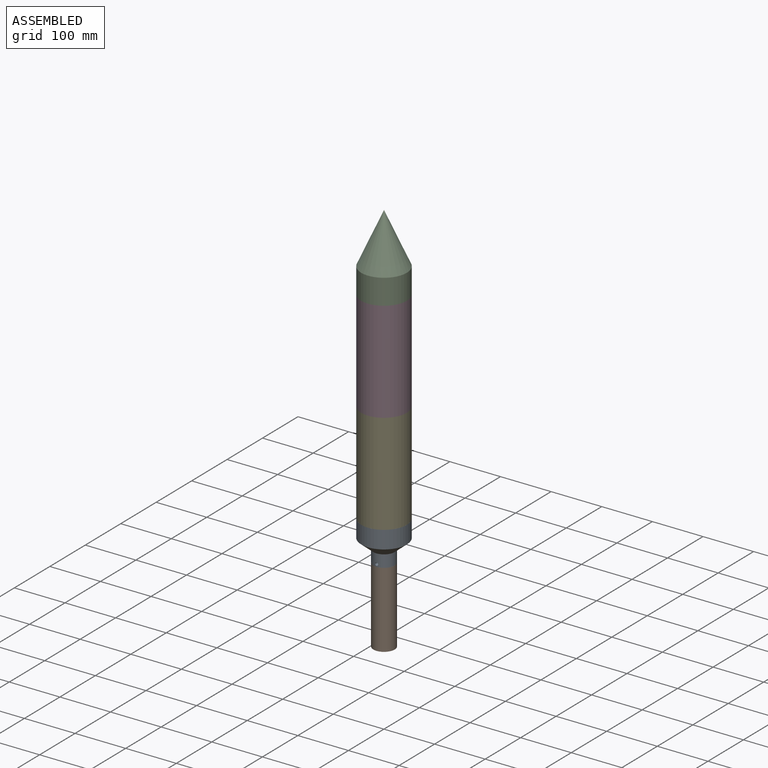
[diagram: assembled view]
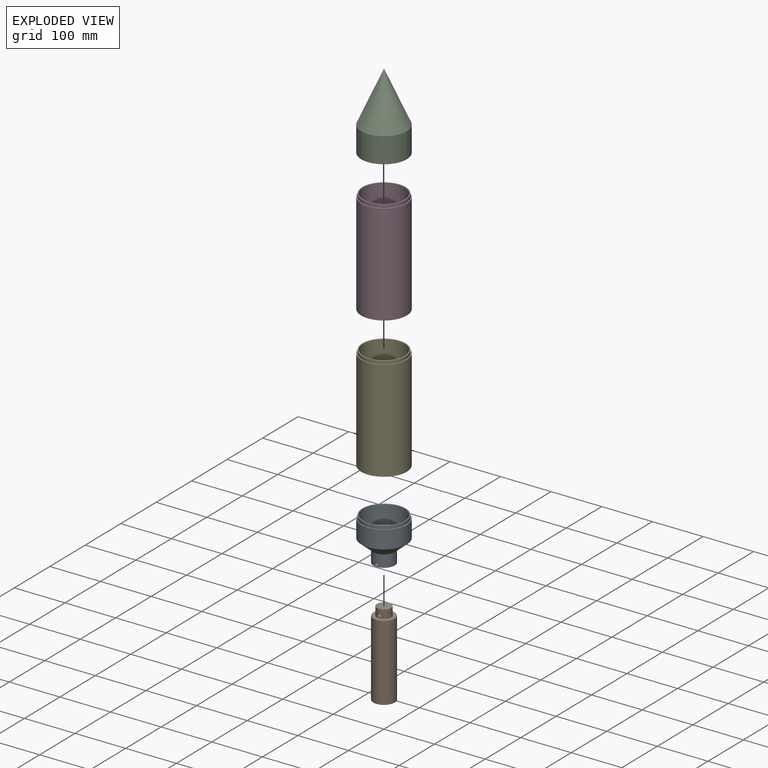
[diagram: exploded view]
GUIDED TOUR — MATED ASSEMBLY (Onshape document 2a1c6613f044ee13382d13de, AutoMate assembly 2a1c6613f044ee13382d13de_4c4db6758d8ee85be0477526_6b141144d60605d0e8371043_default)

This assembly has 5 components, labeled P0..P4 below (a component is one placed occurrence of a part; the same part can appear more than once), held together by 8 mates. A mate is a constraint between two components; its type names the relative motion it leaves free:
  CYLINDRICAL — leaves both rotation about and translation along the listed axis free,
  PLANAR — leaves sliding in the plane through the listed point (normal = the listed direction) and rotation about that normal free.
Axis/direction vectors are unit vectors and 'through' points are millimeter coordinates, both in the assembly's world frame.

MATES
  1. PLANAR "Planar 3": P4 <-> P0, direction (0.000, 0.000, -1.000) through (-50.39, -227.76, -341.91) mm
  2. PLANAR "Planar 1": P2 <-> P3, direction (0.000, 0.000, -1.000) through (-50.39, -227.76, 58.09) mm
  3. CYLINDRICAL "Cylindrical 3": P0 <-> P4, axis (0.000, 0.000, -1.000) through (-50.39, -227.76, -338.91) mm
  4. CYLINDRICAL "Cylindrical 4": P1 <-> P0, axis (0.000, 0.000, 1.000) through (-50.39, -227.76, -412.41) mm
  5. CYLINDRICAL "Cylindrical 2": P4 <-> P3, axis (0.000, 0.000, 1.000) through (-50.39, -227.76, -138.91) mm
  6. PLANAR "Planar 2": P4 <-> P3, direction (0.000, 0.000, 1.000) through (-50.39, -227.76, -141.91) mm
  7. PLANAR "Planar 4": P1 <-> P0, direction (0.000, 0.000, 1.000) through (-50.39, -227.76, -420.91) mm
  8. CYLINDRICAL "Cylindrical 1": P2 <-> P3, axis (0.000, 0.000, -1.000) through (-50.39, -227.76, 64.09) mm

ASSEMBLY ORDER
  1. P0 — the base component [order heuristic]
  2. P1 — core [order heuristic]
  3. P4 [order verified]
  4. P3 [order verified]
  5. P2 [order verified]
Order-tag legend:
  [order verified] — this step's position reverses a verified removal order: the component was checked to insert without passing through the ones already placed.
  [order heuristic] — the first 2 components form the assembly's core: parts whose collision-free extraction could not be verified, listed in mate-graph order.

Of the 5 components, 4 carry the full construction recipe — the FeatureScript program that regenerates the part's solid from scratch; the rest are supplied as boundary geometry only.
Each toured component is shown spotlighted twice — in the assembled view, then in the exploded view, where a leader line traces a displaced component back to its assembled socket (saturated green if recipe-attached, orange if geometry-only; every other component desaturated gray) — followed by its recipe or geometry summary and the mates that hold it.
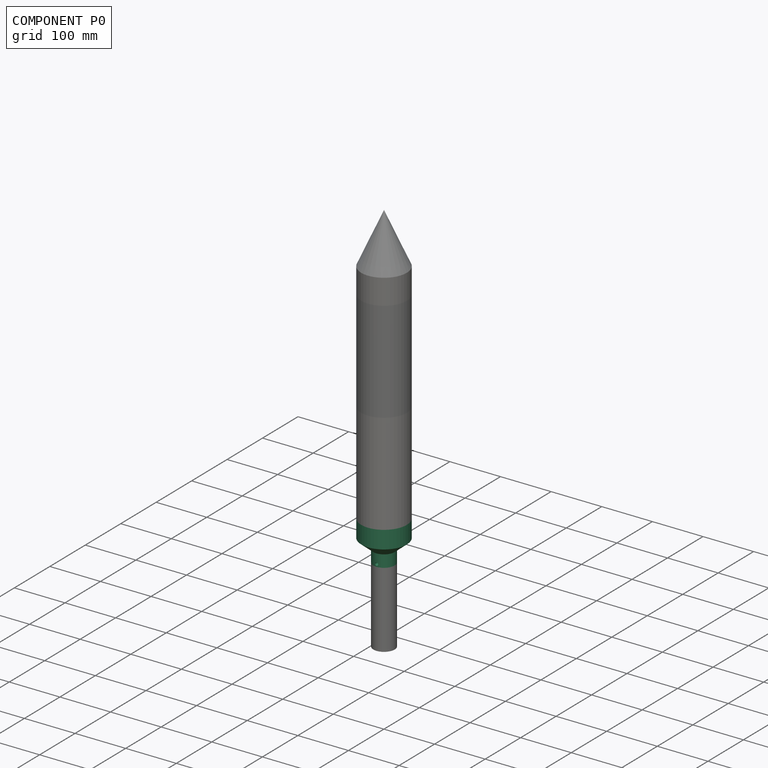
[diagram: component P0 — assembled]
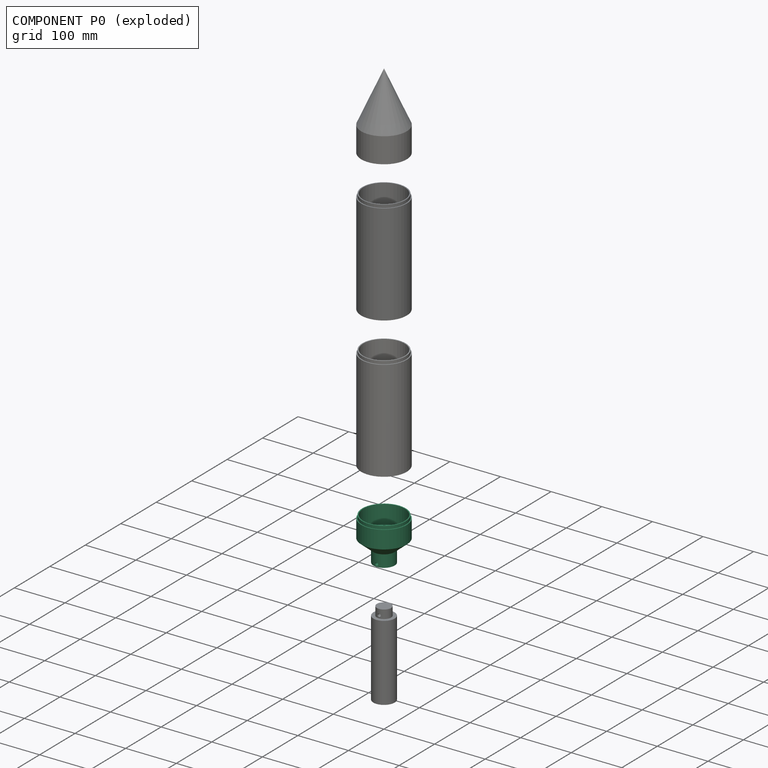
[diagram: component P0 — exploded]
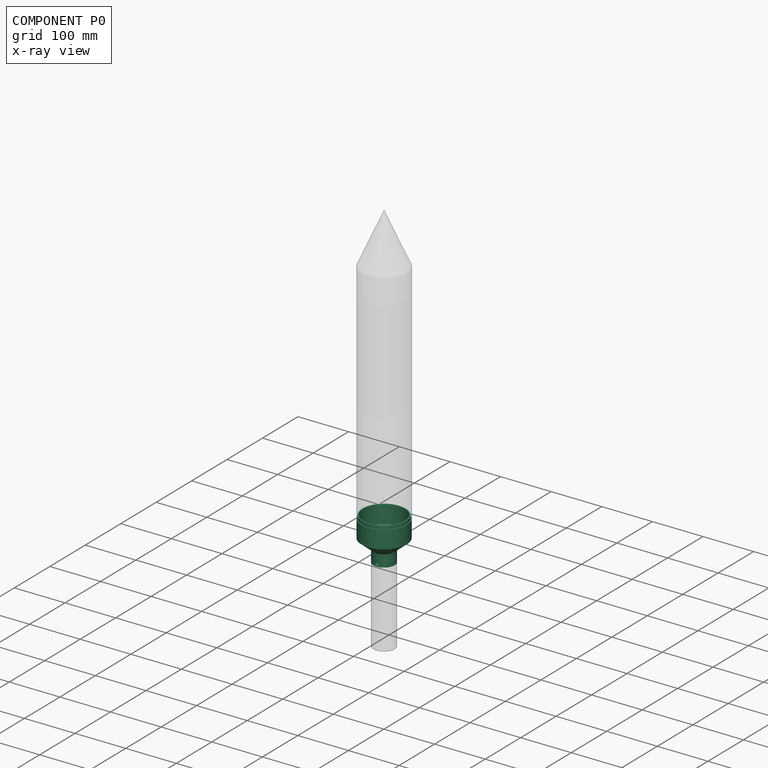
[diagram: component P0 — x-ray view]
COMPONENT P0 — recipe-attached (CADFS 00427040, mesh-verified: the recipe's output STEP matches this component's geometry to below the mesh-comparison resolution (tessellation chordal tolerance ~0.229 mm)).
Held by: PLANAR mate "Planar 3" to P4; CYLINDRICAL mate "Cylindrical 3" to P4; CYLINDRICAL mate "Cylindrical 4" to P1; PLANAR mate "Planar 4" to P1.
Construction recipe (FeatureScript — the CAD program that rebuilds this solid; sketch coordinates are in the units given by the * unit suffixes, e.g. mm):

FeatureScript 1511;
import(path : "onshape/std/geometry.fs", version : "1511.0");
import(path : "onshape/std/common.fs", version : "1511.0");
const mm = millimeter;
const VERTEX = EntityType.VERTEX;
const EDGE = EntityType.EDGE;
const FACE = EntityType.FACE;
const BODY = EntityType.BODY;
function v(x, y){return vector(x, y);}
function OD(order){return orderDisambiguation(order);}
function OSD(set){return originalSetDisambiguation(set);}
function TD(topology){return topologyDisambiguation(topology);}
function TDD(query){return trueDependencyDisambiguation(query);}
function sQuery(a, b, c) {return sketchEntityQuery(a, b, c);}

annotation { "Feature Type Name" : "Feature", "Feature Type Description" : "" }
export const myFeature = defineFeature(function(context is Context, id is Id, definition is map)
    precondition{}
    {
        {
            var Q0;
            Q0=qCreatedBy(makeId("Front.planeOp"),FACE);
            var sketch = newSketch(context, id + "F0", { "sketchPlane" : qUnion([Q0])});
            skLineSegment(sketch, "E0", {"start": v(0, -97.36) * mm, "end": v(0, 38.15) * mm, "construction": true});
            skLineSegment(sketch, "E1", {"start": v(0, -29.6) * mm, "end": v(21, -29.6) * mm, "construction": true});
            skLineSegment(sketch, "E2", {"start": v(21, -53.6) * mm, "end": v(14, -53.6) * mm});
            skLineSegment(sketch, "E3", {"start": v(14, -53.6) * mm, "end": v(14, -36.6) * mm});
            skLineSegment(sketch, "E4", {"start": v(14, -36.6) * mm, "end": v(0, -36.6) * mm});
            skLineSegment(sketch, "E5", {"start": v(21, -53.6) * mm, "end": v(21, -29.6) * mm});
            skLineSegment(sketch, "E6", {"start": v(0, -9.6) * mm, "end": v(45, -9.6) * mm, "construction": true});
            skLineSegment(sketch, "E7", {"start": v(21, -29.6) * mm, "end": v(45, -9.6) * mm});
            skLineSegment(sketch, "E8", {"start": v(0, -29.6) * mm, "end": v(0, -9.6) * mm, "construction": true});
            skLineSegment(sketch, "E9", {"start": v(0, -36.6) * mm, "end": v(0, -29.6) * mm});
            skLineSegment(sketch, "E10", {"start": v(0, -9.6) * mm, "end": v(0, -4.6) * mm});
            skLineSegment(sketch, "E11", {"start": v(0, -9.6) * mm, "end": v(0, -29.6) * mm});
            skLineSegment(sketch, "E12", {"start": v(45, -9.6) * mm, "end": v(45, -4.6) * mm});
            skLineSegment(sketch, "E13", {"start": v(0, -4.6) * mm, "end": v(41, -4.6) * mm});
            skLineSegment(sketch, "E14", {"start": v(45, -4.6) * mm, "end": v(45, 25.4) * mm});
            skLineSegment(sketch, "E15", {"start": v(45, 25.4) * mm, "end": v(43, 25.4) * mm});
            skLineSegment(sketch, "E16", {"start": v(43, 25.4) * mm, "end": v(43, 31.4) * mm});
            skLineSegment(sketch, "E17", {"start": v(41, -4.6) * mm, "end": v(41, 31.4) * mm});
            skLineSegment(sketch, "E18", {"start": v(41, 31.4) * mm, "end": v(43, 31.4) * mm});
            skSolve(sketch);
        }
        {
            var Q0;
            Q0=makeQuery(id+"F0.imprint","IMPRINT",FACE,{"disambiguationData":[TD([[makeQuery(id+"F0.imprint","IMPRINT",EDGE,{"derivedFrom":sQuery(id+"F0.wireOp",EDGE,"E2")}),-1.0]])]});
            var Q1;
            Q1=sQuery(id+"F0.wireOp",EDGE,"E0");
            revolve(context, id + "F1", {"entities" : qUnion([Q0]), "axis" : qUnion([Q1]), "revolveType" : RevolveType.FULL});
        }
        {
            var Q0;
            Q0=qCreatedBy(makeId("Front.planeOp"),FACE);
            var sketch = newSketch(context, id + "F2", { "sketchPlane" : qUnion([Q0])});
            skLineSegment(sketch, "E19.0", {"start": v(21, -53.6) * mm, "end": v(-21, -53.6) * mm, "construction": true});
            skLineSegment(sketch, "E20", {"start": v(21, -53.6) * mm, "end": v(21, -43.6) * mm, "construction": true});
            skLineSegment(sketch, "E21", {"start": v(21, -43.6) * mm, "end": v(-21, -43.6) * mm, "construction": true});
            skLineSegment(sketch, "E22", {"start": v(-21, -43.6) * mm, "end": v(-21, -53.6) * mm, "construction": true});
            skLineSegment(sketch, "E23", {"start": v(0, -53.6) * mm, "end": v(0, -43.6) * mm, "construction": true});
            skCircle(sketch, "E24", {"center": v(0, -48.6) * mm, "radius": 3 * mm});
            skSolve(sketch);
        }
        {
            var Q0;
            Q0=makeQuery(id+"F2.imprint","IMPRINT",FACE,{"disambiguationData":[TD([[makeQuery(id+"F2.imprint","IMPRINT",EDGE,{"derivedFrom":sQuery(id+"F2.wireOp",EDGE,"E24")}),1.0]])]});
            var Q1;
            Q1=sQuery(id+"F2.wireOp",EDGE,"E24");
            extrude(context, id + "F3", {"entities" : qUnion([Q0]), "operationType" : NewBodyOperationType.REMOVE, "surfaceEntities" : qUnion([Q1]), "endBound" : BoundingType.SYMMETRIC, "depth" : 50 * mm});
        }
    });
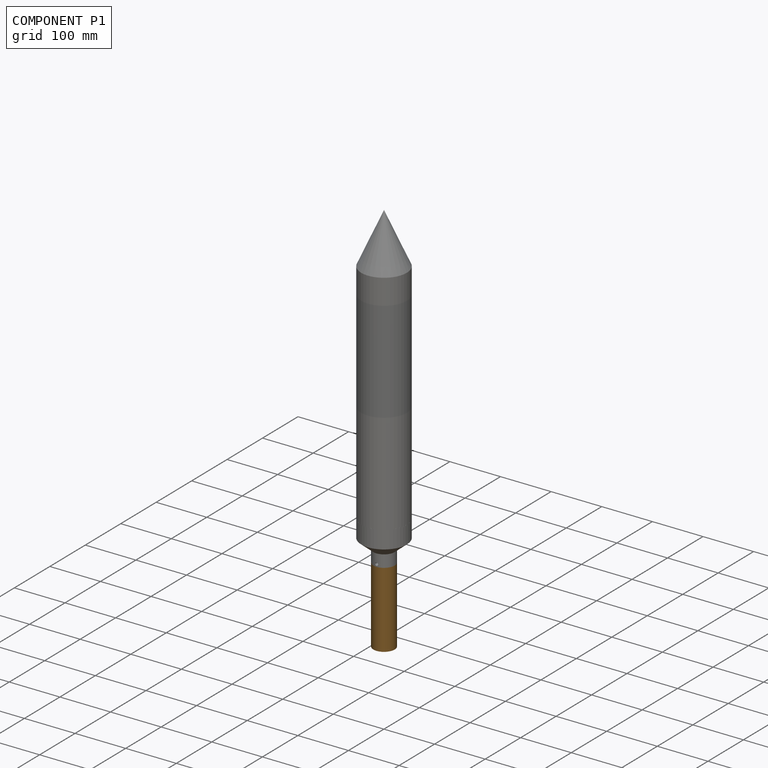
[diagram: component P1 — assembled]
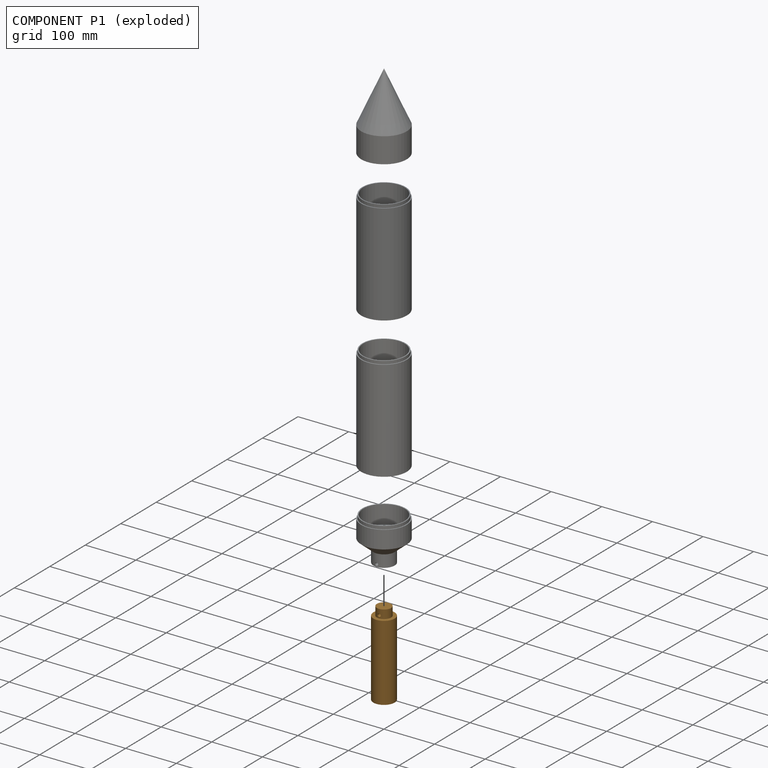
[diagram: component P1 — exploded]
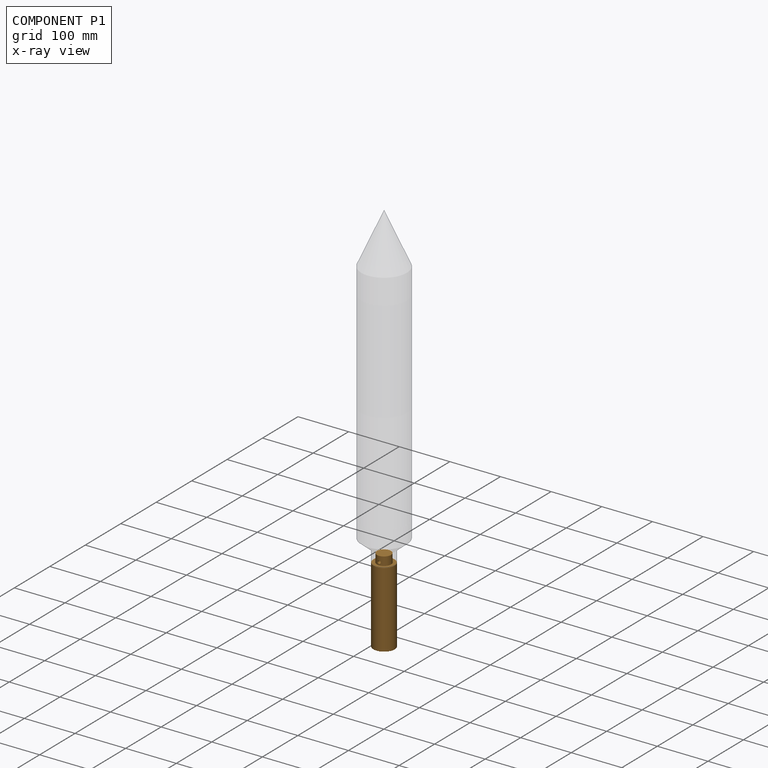
[diagram: component P1 — x-ray view]
COMPONENT P1 — geometry summary (no construction recipe available for this part):
  bounding box: 167.0 x 42.0 x 42.0 mm
  B-rep topology: 1 solid, 11 faces, 49 edges
  volume: 116642 mm^3 (40% of its bounding box)
  symmetry: 2-fold rotationally symmetric about the z axis; mirror-symmetric across its x mid-plane, y mid-plane
Held by: CYLINDRICAL mate "Cylindrical 4" to P0; PLANAR mate "Planar 4" to P0.
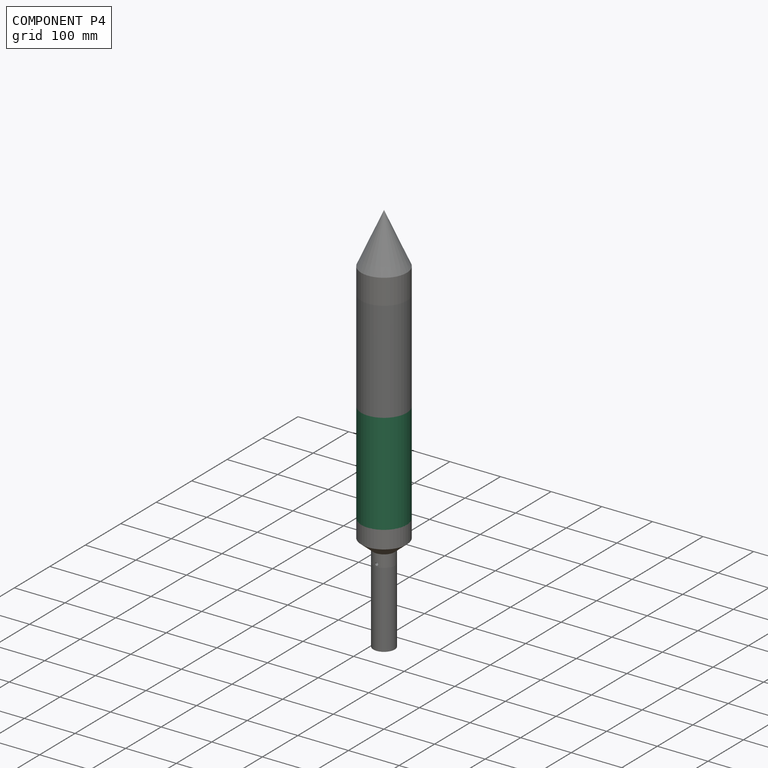
[diagram: component P4 — assembled]
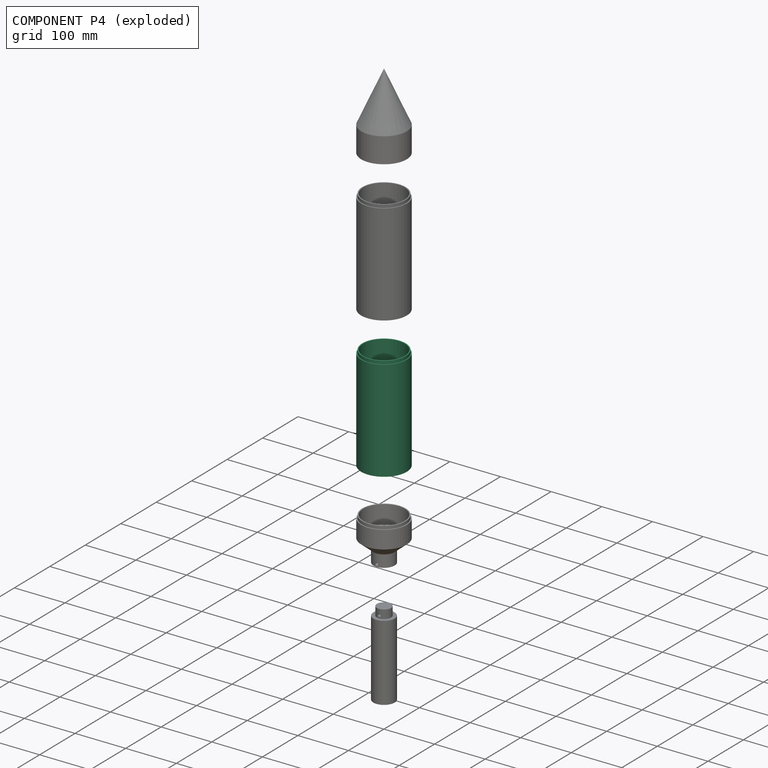
[diagram: component P4 — exploded]
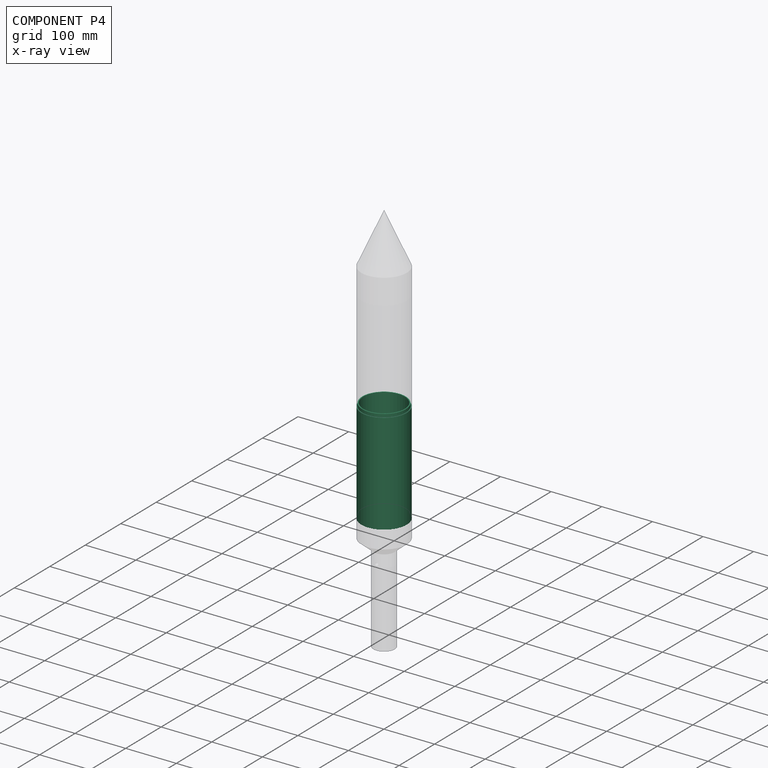
[diagram: component P4 — x-ray view]
COMPONENT P4 — same part as P3 (CADFS 00437142); its construction recipe is shown at P3.
Held by: PLANAR mate "Planar 3" to P0; CYLINDRICAL mate "Cylindrical 3" to P0; CYLINDRICAL mate "Cylindrical 2" to P3; PLANAR mate "Planar 2" to P3.
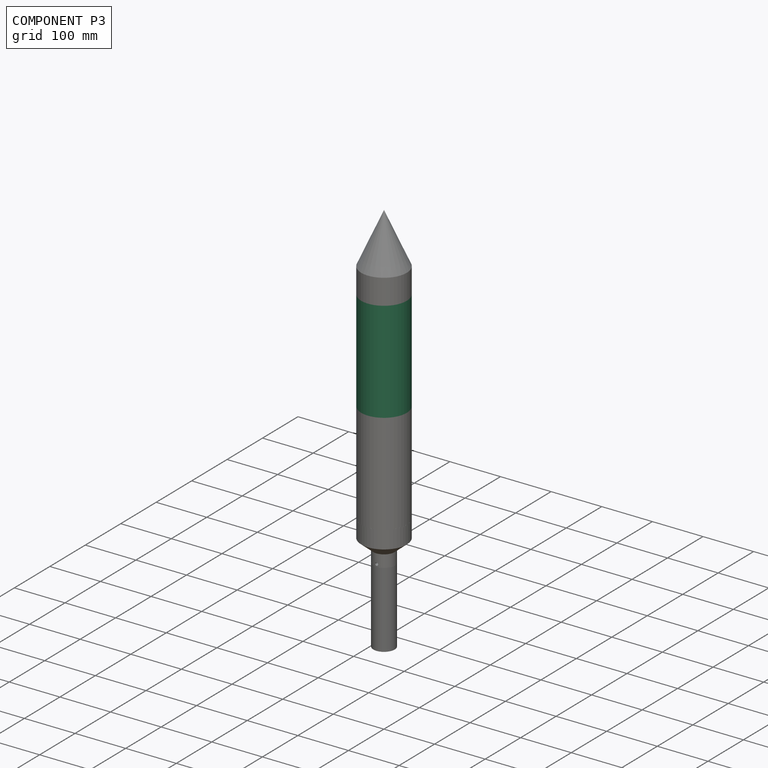
[diagram: component P3 — assembled]
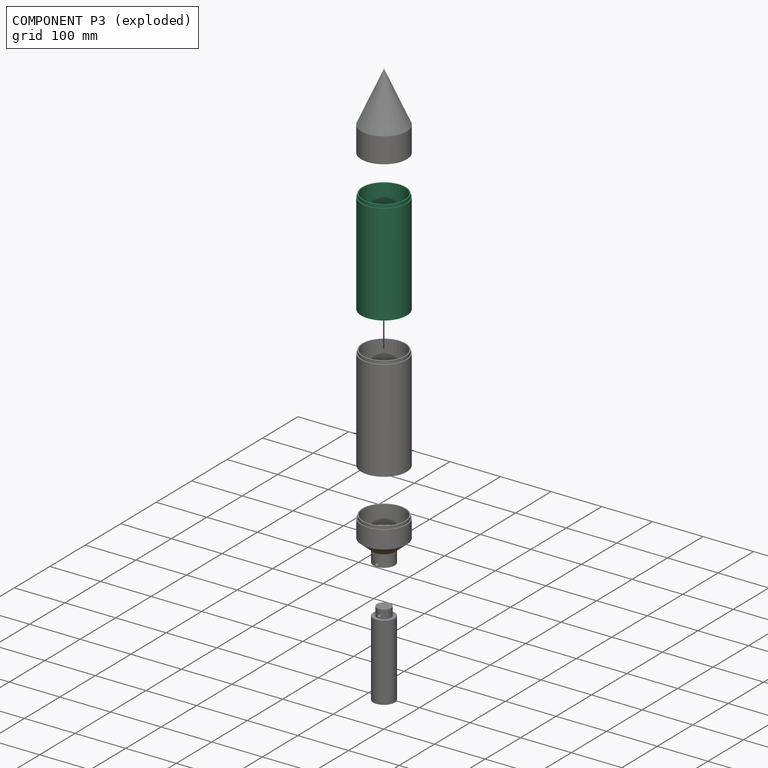
[diagram: component P3 — exploded]
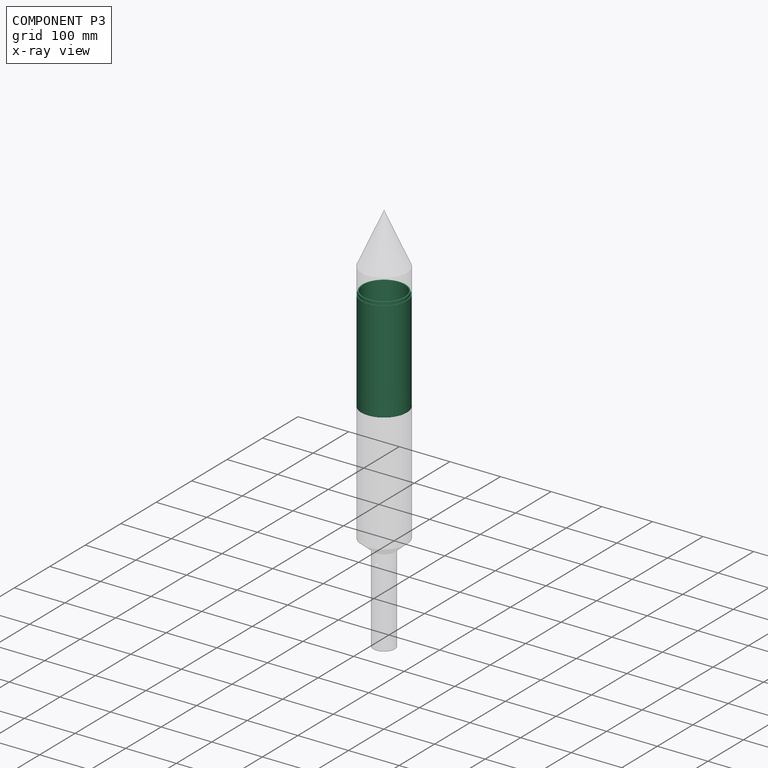
[diagram: component P3 — x-ray view]
COMPONENT P3 — recipe-attached (CADFS 00437142, mesh-verified: the recipe's output STEP matches this component's geometry to below the mesh-comparison resolution (tessellation chordal tolerance ~0.363 mm)).
Held by: PLANAR mate "Planar 1" to P2; CYLINDRICAL mate "Cylindrical 2" to P4; PLANAR mate "Planar 2" to P4; CYLINDRICAL mate "Cylindrical 1" to P2.
Construction recipe (FeatureScript — the CAD program that rebuilds this solid; sketch coordinates are in the units given by the * unit suffixes, e.g. mm):

FeatureScript 1511;
import(path : "onshape/std/geometry.fs", version : "1511.0");
import(path : "onshape/std/common.fs", version : "1511.0");
const mm = millimeter;
const VERTEX = EntityType.VERTEX;
const EDGE = EntityType.EDGE;
const FACE = EntityType.FACE;
const BODY = EntityType.BODY;
function v(x, y){return vector(x, y);}
function OD(order){return orderDisambiguation(order);}
function OSD(set){return originalSetDisambiguation(set);}
function TD(topology){return topologyDisambiguation(topology);}
function TDD(query){return trueDependencyDisambiguation(query);}
function sQuery(a, b, c) {return sketchEntityQuery(a, b, c);}

annotation { "Feature Type Name" : "Feature", "Feature Type Description" : "" }
export const myFeature = defineFeature(function(context is Context, id is Id, definition is map)
    precondition{}
    {
        {
            var Q0;
            Q0=qCreatedBy(makeId("Front.planeOp"),FACE);
            var sketch = newSketch(context, id + "F0", { "sketchPlane" : qUnion([Q0])});
            skLineSegment(sketch, "E0", {"start": v(0, 0) * mm, "end": v(41, 0) * mm, "construction": true});
            skLineSegment(sketch, "E1", {"start": v(41, 0) * mm, "end": v(41, -101.03) * mm});
            skLineSegment(sketch, "E2", {"start": v(41, -101.03) * mm, "end": v(43, -101.03) * mm});
            skLineSegment(sketch, "E3", {"start": v(43, -101.03) * mm, "end": v(43, -95.03) * mm});
            skLineSegment(sketch, "E4", {"start": v(43, -95.03) * mm, "end": v(45, -95.03) * mm});
            skLineSegment(sketch, "E5", {"start": v(45, -95.03) * mm, "end": v(45, 104.97) * mm});
            skLineSegment(sketch, "E6", {"start": v(45, 104.97) * mm, "end": v(43, 104.97) * mm});
            skLineSegment(sketch, "E7", {"start": v(43, 104.97) * mm, "end": v(43, 98.97) * mm});
            skLineSegment(sketch, "E8", {"start": v(43, 98.97) * mm, "end": v(41, 98.97) * mm});
            skLineSegment(sketch, "E9", {"start": v(41, 98.97) * mm, "end": v(41, 0) * mm});
            skLineSegment(sketch, "E10", {"start": v(0, -59.1) * mm, "end": v(0, 57.73) * mm, "construction": true});
            skSolve(sketch);
        }
        {
            var Q0;
            Q0=makeQuery(id+"F0.imprint","IMPRINT",FACE,{"disambiguationData":[TD([[makeQuery(id+"F0.imprint","IMPRINT",EDGE,{"derivedFrom":sQuery(id+"F0.wireOp",EDGE,"E1")}),1.0]])]});
            var Q1;
            Q1=sQuery(id+"F0.wireOp",EDGE,"E10");
            revolve(context, id + "F1", {"entities" : qUnion([Q0]), "axis" : qUnion([Q1]), "revolveType" : RevolveType.FULL});
        }
    });
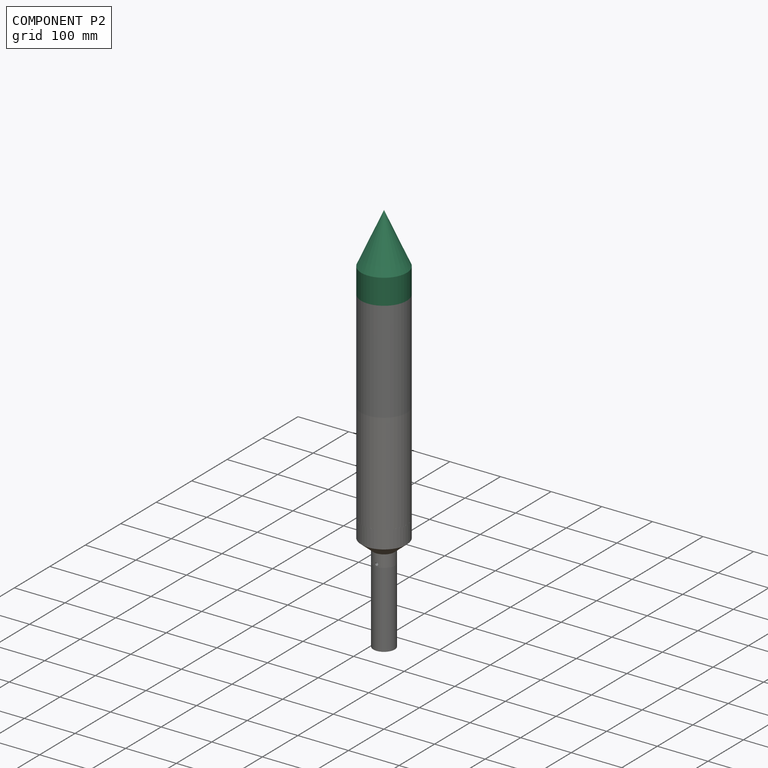
[diagram: component P2 — assembled]
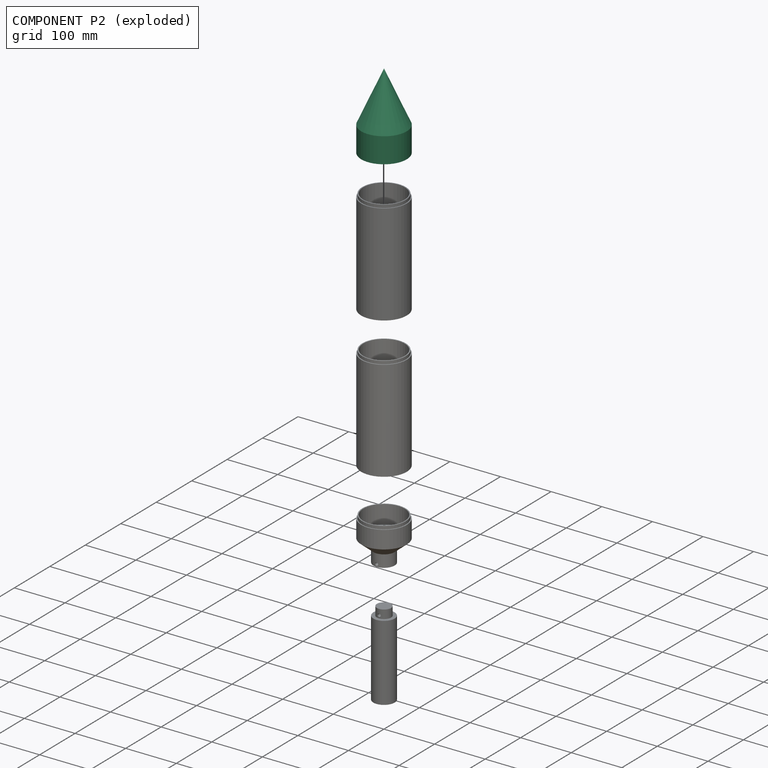
[diagram: component P2 — exploded]
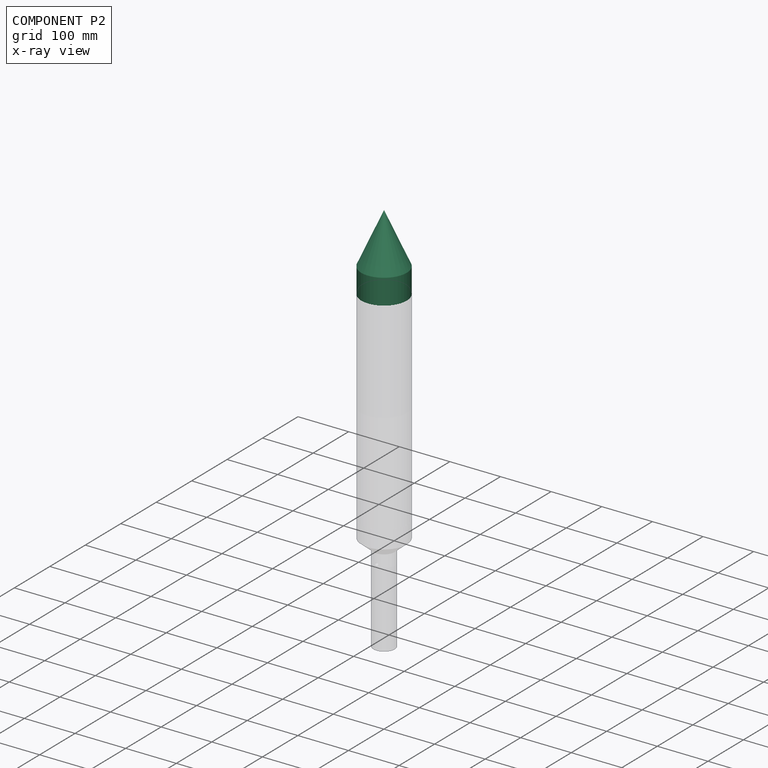
[diagram: component P2 — x-ray view]
COMPONENT P2 — recipe-attached (CADFS 00437150, mesh-verified: the recipe's output STEP matches this component's geometry to below the mesh-comparison resolution (tessellation chordal tolerance ~0.295 mm)).
Held by: PLANAR mate "Planar 1" to P3; CYLINDRICAL mate "Cylindrical 1" to P3.
Construction recipe (FeatureScript — the CAD program that rebuilds this solid; sketch coordinates are in the units given by the * unit suffixes, e.g. mm):

FeatureScript 1511;
import(path : "onshape/std/geometry.fs", version : "1511.0");
import(path : "onshape/std/common.fs", version : "1511.0");
const mm = millimeter;
const VERTEX = EntityType.VERTEX;
const EDGE = EntityType.EDGE;
const FACE = EntityType.FACE;
const BODY = EntityType.BODY;
function v(x, y){return vector(x, y);}
function OD(order){return orderDisambiguation(order);}
function OSD(set){return originalSetDisambiguation(set);}
function TD(topology){return topologyDisambiguation(topology);}
function TDD(query){return trueDependencyDisambiguation(query);}
function sQuery(a, b, c) {return sketchEntityQuery(a, b, c);}

annotation { "Feature Type Name" : "Feature", "Feature Type Description" : "" }
export const myFeature = defineFeature(function(context is Context, id is Id, definition is map)
    precondition{}
    {
        {
            var Q0;
            Q0=qCreatedBy(makeId("Front.planeOp"),FACE);
            var sketch = newSketch(context, id + "F0", { "sketchPlane" : qUnion([Q0])});
            skLineSegment(sketch, "E0", {"start": v(0, 0) * mm, "end": v(41, 0) * mm, "construction": true});
            skLineSegment(sketch, "E1", {"start": v(41, -26.48) * mm, "end": v(43, -26.48) * mm});
            skLineSegment(sketch, "E2", {"start": v(43, -26.48) * mm, "end": v(43, -32.48) * mm});
            skLineSegment(sketch, "E3", {"start": v(43, -32.48) * mm, "end": v(45, -32.48) * mm});
            skLineSegment(sketch, "E4", {"start": v(45, -32.48) * mm, "end": v(45, 17.52) * mm});
            skLineSegment(sketch, "E5", {"start": v(45, 17.52) * mm, "end": v(0, 117.52) * mm});
            skLineSegment(sketch, "E6", {"start": v(41, 17.52) * mm, "end": v(0, 17.52) * mm, "construction": true});
            skLineSegment(sketch, "E7", {"start": v(0, 17.52) * mm, "end": v(0, 117.52) * mm, "construction": true});
            skLineSegment(sketch, "E8", {"start": v(0, 117.52) * mm, "end": v(0, 112.52) * mm});
            skLineSegment(sketch, "E9", {"start": v(0, 112.52) * mm, "end": v(41, 21.41) * mm});
            skLineSegment(sketch, "E10", {"start": v(41, -26.48) * mm, "end": v(41, 21.41) * mm});
            skSolve(sketch);
        }
        {
            var Q0;
            Q0=makeQuery(id+"F0.imprint","IMPRINT",FACE,{"disambiguationData":[TD([[makeQuery(id+"F0.imprint","IMPRINT",EDGE,{"derivedFrom":sQuery(id+"F0.wireOp",EDGE,"E1")}),1.0]])]});
            var Q1;
            Q1=sQuery(id+"F0.wireOp",EDGE,"E7");
            revolve(context, id + "F1", {"entities" : qUnion([Q0]), "axis" : qUnion([Q1]), "revolveType" : RevolveType.FULL});
        }
    });
PROVENANCE & LICENSES
Assembly (occurrences, transforms, mates, per-part STEP geometry): AutoMate dataset, Zenodo record 7776208, CC0.
Construction recipes: CADFS (HuggingFace VladPyatov/CADFS, CC-BY-4.0, layered over the ABC dataset), FeatureScript reconstruction programs keyed by ABC model id.
Join: ABC meta listings map ABC model id -> Onshape documentId; within a shared document, parts are matched by geometric signature (bounding-box dims + volume at 0.1% relative tolerance, exact B-rep face/solid counts).
Verification: 4 of this assembly's 5 components carry a recipe attachment, and every attachment is mesh-verified: the CADFS STEP and the AutoMate member STEP were compared as meshes in their shared local frame (symmetric sampled-point-to-mesh distance); worst across the 4 attachments: below the mesh-comparison resolution (tessellation chordal tolerance ~0.363 mm) on a 242 mm part.
Renders: orthographic iso camera (az 35 / el 25); the floor grid conveys scale (grid pitch printed in each image; no ruler). In the exploded view each component is displaced by its stored offset vector: the offsets alone carry the explosion direction (mate normal/axis signs are not orientation cues and do not encode it), and separation distances are assigned per mate-chain, not proportionally to assembly-order depth.
